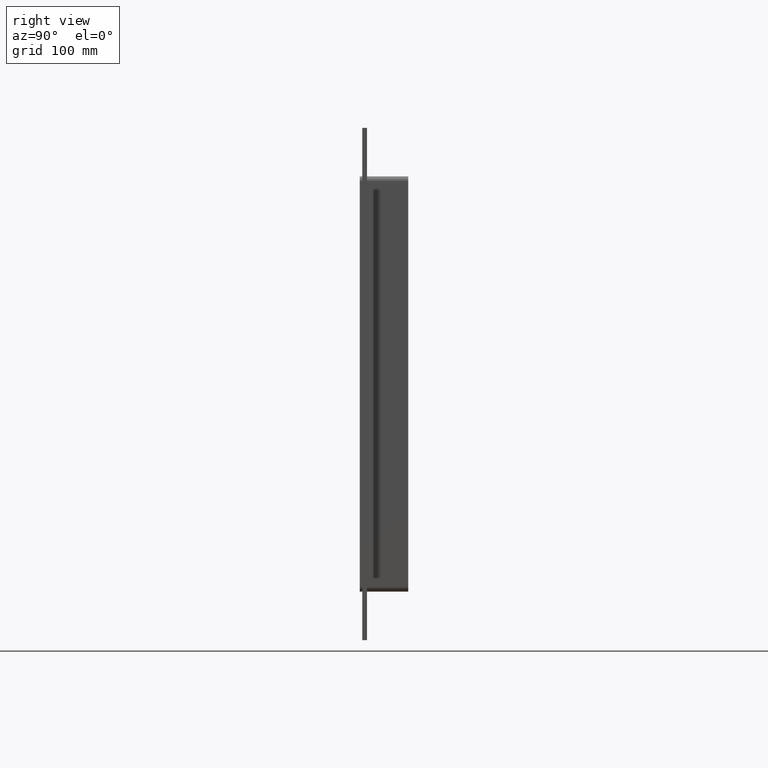
[diagram: clean part render]
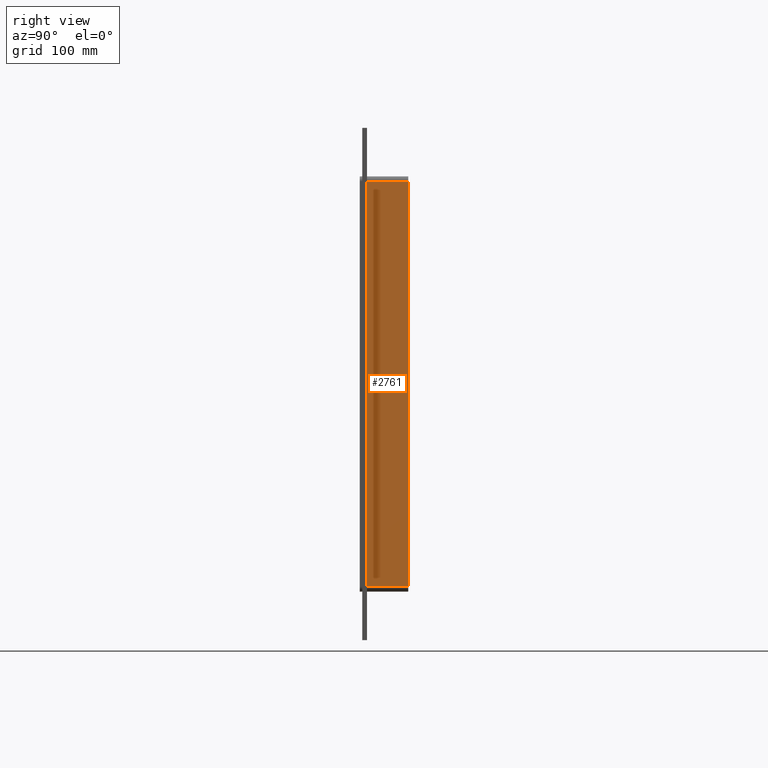
[diagram: same view with one face highlighted and labeled with its STEP entity id]
A machine part, right view. The second image highlights one B-rep face of the part: STEP entity #2761.
In plain terms, the highlighted planar face has unit normal (1, 0, 0).
Its self-contained STEP definition (entity closure, byte-faithful):
#1153=CARTESIAN_POINT('',(262.0,57.0,-251.25));
#1154=VERTEX_POINT('',#1153);
#1204=CARTESIAN_POINT('',(262.0,57.0,251.25));
#1205=VERTEX_POINT('',#1204);
#1213=CARTESIAN_POINT('',(262.0,57.0,251.25));
#1214=DIRECTION('',(0.0,0.0,-1.0));
#1215=VECTOR('',#1214,502.5);
#1216=LINE('',#1213,#1215);
#1217=EDGE_CURVE('',#1205,#1154,#1216,.T.);
#2394=CARTESIAN_POINT('',(262.0,6.000000000000001,-251.25));
#2395=VERTEX_POINT('',#2394);
#2403=CARTESIAN_POINT('',(262.0,6.000000000000001,251.25));
#2404=VERTEX_POINT('',#2403);
#2405=CARTESIAN_POINT('',(262.0,6.000000000000001,251.25));
#2406=DIRECTION('',(0.0,0.0,-1.0));
#2407=VECTOR('',#2406,502.5);
#2408=LINE('',#2405,#2407);
#2409=EDGE_CURVE('',#2404,#2395,#2408,.T.);
#2712=CARTESIAN_POINT('',(262.0,6.000000000000001,251.25));
#2713=DIRECTION('',(0.0,1.0,0.0));
#2714=VECTOR('',#2713,51.0);
#2715=LINE('',#2712,#2714);
#2716=EDGE_CURVE('',#2404,#1205,#2715,.T.);
#2745=CARTESIAN_POINT('',(262.0,0.0,257.25));
#2746=DIRECTION('',(1.0,0.0,0.0));
#2747=DIRECTION('',(0.0,0.0,-1.0));
#2748=AXIS2_PLACEMENT_3D('',#2745,#2746,#2747);
#2749=PLANE('',#2748);
#2750=ORIENTED_EDGE('',*,*,#2409,.T.);
#2751=CARTESIAN_POINT('',(262.0,57.0,-251.25));
#2752=DIRECTION('',(0.0,-1.0,0.0));
#2753=VECTOR('',#2752,51.0);
#2754=LINE('',#2751,#2753);
#2755=EDGE_CURVE('',#1154,#2395,#2754,.T.);
#2756=ORIENTED_EDGE('',*,*,#2755,.F.);
#2757=ORIENTED_EDGE('',*,*,#1217,.F.);
#2758=ORIENTED_EDGE('',*,*,#2716,.F.);
#2759=EDGE_LOOP('',(#2750,#2756,#2757,#2758));
#2760=FACE_OUTER_BOUND('',#2759,.T.);
#2761=ADVANCED_FACE('',(#2760),#2749,.T.);